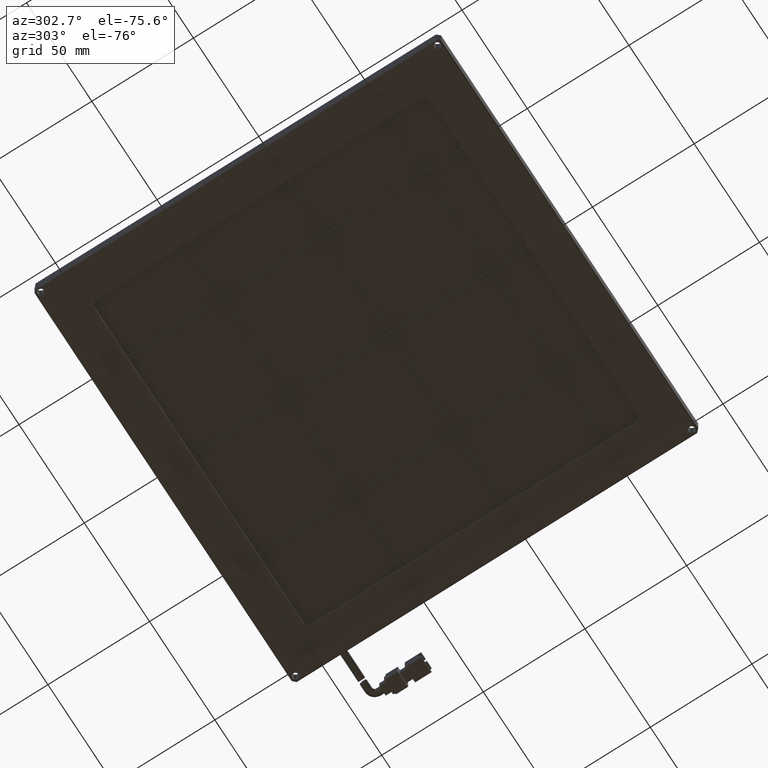
[diagram: clean part render]
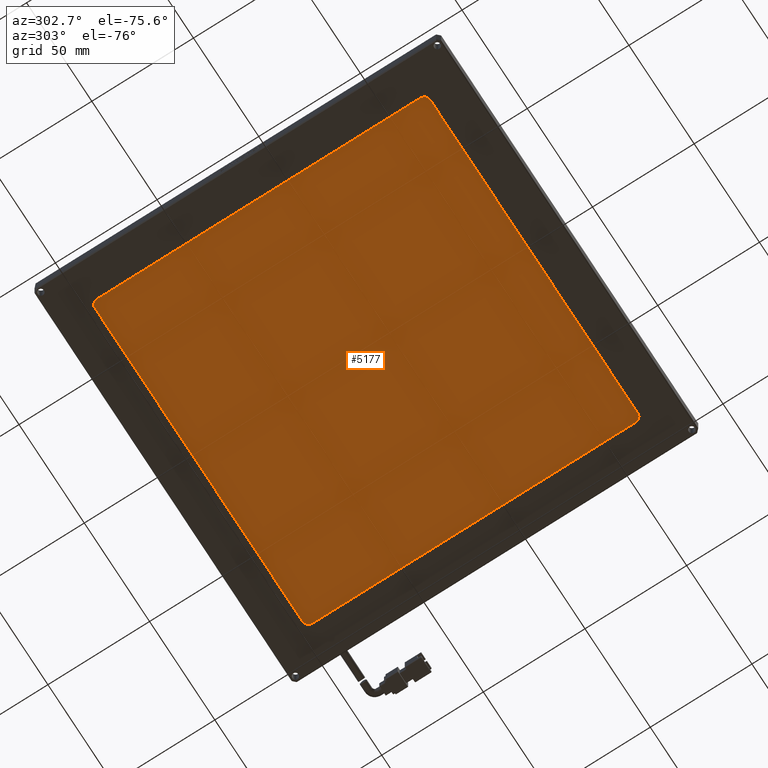
[diagram: same view with one face highlighted and labeled with its STEP entity id]
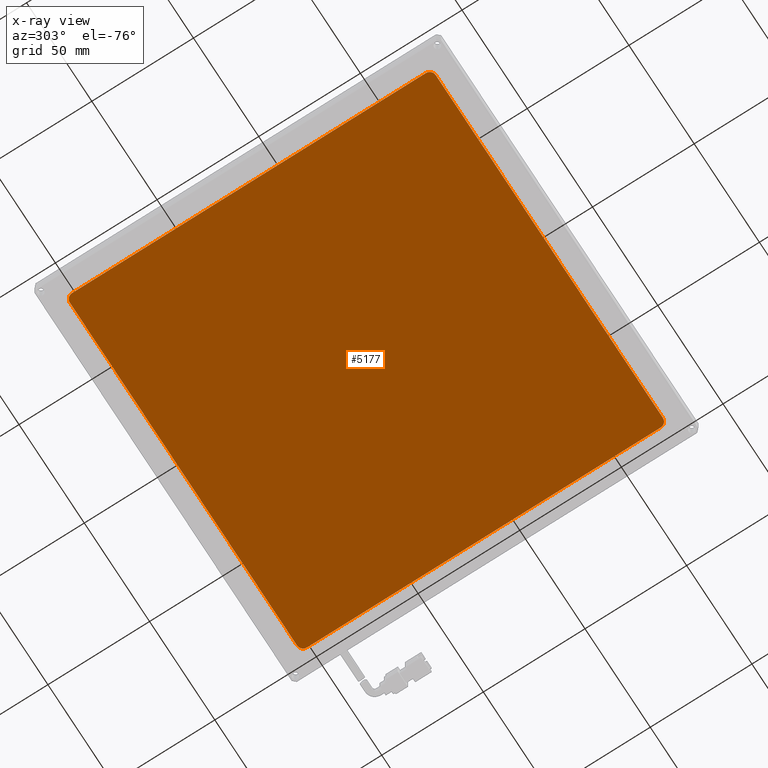
[diagram: x-ray of the same camera — body ghosted, the highlighted face saturated]
A machine part, auxiliary view. The second image highlights one B-rep face of the part: STEP entity #5177.
The next image is the same camera in x-ray: the body ghosted, the highlighted face saturated — about 0% of this face is hidden behind the body in this view.
In plain terms, the highlighted planar face has unit normal (0, 0, -1).
Its self-contained STEP definition (entity closure, byte-faithful):
#210 = DIRECTION ( 'NONE',  ( -1.000000000000000000, 2.775557561562888800E-014, 0.0000000000000000000 ) ) ;
#354 = CARTESIAN_POINT ( 'NONE',  ( -131.2189553990610000, -72.04917840375587400, -2.000000000000000900 ) ) ;
#456 = DIRECTION ( 'NONE',  ( -1.000000000000000000, 0.0000000000000000000, -0.0000000000000000000 ) ) ;
#735 = CARTESIAN_POINT ( 'NONE',  ( 42.78104460093898400, 101.9508215962441300, -2.000000000000000900 ) ) ;
#1651 = CARTESIAN_POINT ( 'NONE',  ( -134.2189553990610000, 101.9508215962441000, -2.000000000000000900 ) ) ;
#2139 = CIRCLE ( 'NONE', #25754, 3.000000000000002700 ) ;
#2593 = CARTESIAN_POINT ( 'NONE',  ( -134.2189553990610000, -72.04917840375587400, -2.000000000000000900 ) ) ;
#2872 = DIRECTION ( 'NONE',  ( -1.000000000000000000, 0.0000000000000000000, 0.0000000000000000000 ) ) ;
#2885 = ORIENTED_EDGE ( 'NONE', *, *, #15253, .F. ) ;
#3247 = DIRECTION ( 'NONE',  ( -1.000000000000000000, 0.0000000000000000000, 0.0000000000000000000 ) ) ;
#4074 = VECTOR ( 'NONE', #14599, 1000.000000000000000 ) ;
#4090 = VERTEX_POINT ( 'NONE', #15292 ) ;
#4252 = VERTEX_POINT ( 'NONE', #6999 ) ;
#4925 = CARTESIAN_POINT ( 'NONE',  ( 45.78104460093898400, -75.04917840375587400, -2.000000000000000900 ) ) ;
#5177 = ADVANCED_FACE ( 'NONE', ( #22116 ), #20013, .T. ) ;
#5408 = LINE ( 'NONE', #14393, #17700 ) ;
#6211 = ORIENTED_EDGE ( 'NONE', *, *, #31820, .T. ) ;
#6606 = VERTEX_POINT ( 'NONE', #2593 ) ;
#6638 = LINE ( 'NONE', #15718, #29027 ) ;
#6672 = CIRCLE ( 'NONE', #25542, 3.000000000000002700 ) ;
#6775 = EDGE_CURVE ( 'NONE', #4090, #10281, #6672, .T. ) ;
#6999 = CARTESIAN_POINT ( 'NONE',  ( -131.2189553990610000, 104.9508215962441300, -2.000000000000000900 ) ) ;
#7041 = EDGE_CURVE ( 'NONE', #6606, #21190, #6638, .T. ) ;
#7113 = DIRECTION ( 'NONE',  ( 1.000000000000000000, 0.0000000000000000000, 0.0000000000000000000 ) ) ;
#7162 = CARTESIAN_POINT ( 'NONE',  ( 42.78104460093895500, 104.9508215962441300, -2.000000000000000900 ) ) ;
#9326 = ORIENTED_EDGE ( 'NONE', *, *, #30385, .F. ) ;
#9634 = AXIS2_PLACEMENT_3D ( 'NONE', #30001, #15174, #456 ) ;
#9661 = ORIENTED_EDGE ( 'NONE', *, *, #13834, .F. ) ;
#10241 = CARTESIAN_POINT ( 'NONE',  ( 42.78104460093898400, -72.04917840375587400, -2.000000000000000900 ) ) ;
#10281 = VERTEX_POINT ( 'NONE', #23479 ) ;
#11496 = EDGE_CURVE ( 'NONE', #30552, #10281, #29516, .T. ) ;
#11970 = ORIENTED_EDGE ( 'NONE', *, *, #7041, .T. ) ;
#12651 = DIRECTION ( 'NONE',  ( -1.000000000000000000, 0.0000000000000000000, 0.0000000000000000000 ) ) ;
#13355 = ORIENTED_EDGE ( 'NONE', *, *, #11496, .T. ) ;
#13383 = EDGE_CURVE ( 'NONE', #4090, #24914, #16626, .T. ) ;
#13568 = CIRCLE ( 'NONE', #15173, 3.000000000000002700 ) ;
#13834 = EDGE_CURVE ( 'NONE', #4252, #21190, #20754, .T. ) ;
#14043 = CARTESIAN_POINT ( 'NONE',  ( -134.2189553990610000, -75.04917840375587400, -2.000000000000000900 ) ) ;
#14393 = CARTESIAN_POINT ( 'NONE',  ( -134.2189553990610000, 104.9508215962441300, -2.000000000000000900 ) ) ;
#14599 = DIRECTION ( 'NONE',  ( -0.0000000000000000000, -1.000000000000000000, 0.0000000000000000000 ) ) ;
#14913 = DIRECTION ( 'NONE',  ( -0.0000000000000000000, -0.0000000000000000000, 1.000000000000000000 ) ) ;
#15173 = AXIS2_PLACEMENT_3D ( 'NONE', #354, #17526, #2872 ) ;
#15174 = DIRECTION ( 'NONE',  ( 0.0000000000000000000, 0.0000000000000000000, -1.000000000000000000 ) ) ;
#15253 = EDGE_CURVE ( 'NONE', #6606, #24914, #13568, .T. ) ;
#15292 = CARTESIAN_POINT ( 'NONE',  ( 42.78104460093895500, -75.04917840375587400, -2.000000000000000900 ) ) ;
#15718 = CARTESIAN_POINT ( 'NONE',  ( -134.2189553990610000, -75.04917840375587400, -2.000000000000000900 ) ) ;
#16626 = LINE ( 'NONE', #14043, #23171 ) ;
#16828 = ORIENTED_EDGE ( 'NONE', *, *, #13383, .T. ) ;
#16846 = CARTESIAN_POINT ( 'NONE',  ( 45.78104460093898400, 101.9508215962441000, -2.000000000000000900 ) ) ;
#17526 = DIRECTION ( 'NONE',  ( -0.0000000000000000000, -0.0000000000000000000, 1.000000000000000000 ) ) ;
#17696 = VERTEX_POINT ( 'NONE', #7162 ) ;
#17700 = VECTOR ( 'NONE', #7113, 1000.000000000000000 ) ;
#17931 = DIRECTION ( 'NONE',  ( -0.0000000000000000000, -0.0000000000000000000, 1.000000000000000000 ) ) ;
#20013 = PLANE ( 'NONE',  #9634 ) ;
#20754 = CIRCLE ( 'NONE', #24612, 3.000000000000002700 ) ;
#21190 = VERTEX_POINT ( 'NONE', #1651 ) ;
#22116 = FACE_OUTER_BOUND ( 'NONE', #25167, .T. ) ;
#23171 = VECTOR ( 'NONE', #28892, 1000.000000000000000 ) ;
#23472 = ORIENTED_EDGE ( 'NONE', *, *, #6775, .F. ) ;
#23479 = CARTESIAN_POINT ( 'NONE',  ( 45.78104460093898400, -72.04917840375587400, -2.000000000000000900 ) ) ;
#24612 = AXIS2_PLACEMENT_3D ( 'NONE', #29761, #14913, #210 ) ;
#24914 = VERTEX_POINT ( 'NONE', #28356 ) ;
#25167 = EDGE_LOOP ( 'NONE', ( #13355, #23472, #16828, #2885, #11970, #9661, #6211, #9326 ) ) ;
#25542 = AXIS2_PLACEMENT_3D ( 'NONE', #10241, #27451, #12651 ) ;
#25653 = DIRECTION ( 'NONE',  ( -0.0000000000000000000, 1.000000000000000000, 0.0000000000000000000 ) ) ;
#25754 = AXIS2_PLACEMENT_3D ( 'NONE', #735, #17931, #3247 ) ;
#27451 = DIRECTION ( 'NONE',  ( -0.0000000000000000000, -0.0000000000000000000, 1.000000000000000000 ) ) ;
#28356 = CARTESIAN_POINT ( 'NONE',  ( -131.2189553990610000, -75.04917840375587400, -2.000000000000000900 ) ) ;
#28892 = DIRECTION ( 'NONE',  ( -1.000000000000000000, -0.0000000000000000000, 0.0000000000000000000 ) ) ;
#29027 = VECTOR ( 'NONE', #25653, 1000.000000000000000 ) ;
#29516 = LINE ( 'NONE', #4925, #4074 ) ;
#29761 = CARTESIAN_POINT ( 'NONE',  ( -131.2189553990610000, 101.9508215962441300, -2.000000000000000900 ) ) ;
#30001 = CARTESIAN_POINT ( 'NONE',  ( -134.2189553990610000, 104.9508215962441300, -2.000000000000000900 ) ) ;
#30385 = EDGE_CURVE ( 'NONE', #30552, #17696, #2139, .T. ) ;
#30552 = VERTEX_POINT ( 'NONE', #16846 ) ;
#31820 = EDGE_CURVE ( 'NONE', #4252, #17696, #5408, .T. ) ;